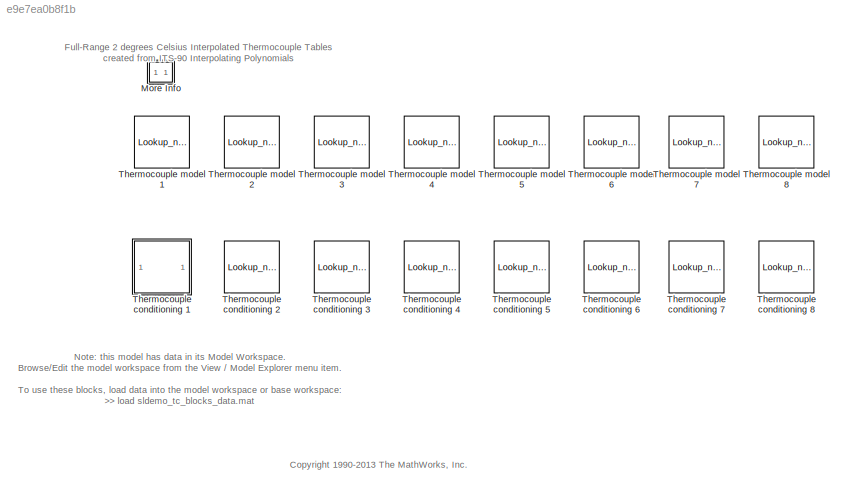
MODEL slx_e9e7ea0b8f1b
KIND model
CONFIG AbsTol = auto
CONFIG EnableMultiTasking = on
CONFIG FixedStep = 1
CONFIG MaxStep = auto
CONFIG MinStep = auto
CONFIG RelTol = 1e-3
CONFIG SampleTimeConstraint = Unconstrained
CONFIG SolverName = FixedStepDiscrete
CONFIG StartTime = 0.0
CONFIG StopTime = 1
WORKSPACE source: external: MAT-File  (data not in archive)
BLOCK [SubSystem] More Info
  OpenFcn = showExample('simulink_general/sldemo_tc_scriptExample')
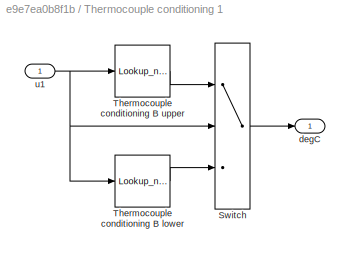
BLOCK [SubSystem] Thermocouple conditioning 1
  AttributesFormatString = TypeB_Volts to\nTypeB_degC
BLOCK [Switch] Thermocouple conditioning 1/Switch
  InputSameDT = off
  SaturateOnIntegerOverflow = off
  Threshold = TypeB_Volts(12)
BLOCK [Lookup_n-D] Thermocouple conditioning 1/Thermocouple conditioning B lower
  AttributesFormatString = %<bp1> to\n%<tableData>
  BeginIndexSearchUsingPreviousIndexResult = on
  BreakpointsForDimension1 = TypeB_Volts(12:-1:1)
  DiagnosticForOutOfRangeInput = Warning
  InputPortMap = u0
  NumberOfTableDimensions = 1
  Table = TypeB_degC(12:-1:1)
BLOCK [Lookup_n-D] Thermocouple conditioning 1/Thermocouple conditioning B upper
  AttributesFormatString = %<bp1> to\n%<tableData>
  BeginIndexSearchUsingPreviousIndexResult = on
  BreakpointsForDimension1 = TypeB_Volts(12:end)
  DiagnosticForOutOfRangeInput = Warning
  InputPortMap = u0
  NameLocation = top
  NumberOfTableDimensions = 1
  Table = TypeB_degC(12:end)
BLOCK [Outport] Thermocouple conditioning 1/degC
  VectorParamsAs1DForOutWhenUnconnected = off
BLOCK [Inport] Thermocouple conditioning 1/u1
BLOCK [Lookup_n-D] Thermocouple conditioning 2
  AttributesFormatString = %<bp1> to\n%<tableData>
  BeginIndexSearchUsingPreviousIndexResult = on
  BreakpointsForDimension1 = TypeE_Volts
  DiagnosticForOutOfRangeInput = Warning
  InputPortMap = u0
  NumberOfTableDimensions = 1
  Table = TypeE_degC
BLOCK [Lookup_n-D] Thermocouple conditioning 3
  AttributesFormatString = %<bp1> to\n%<tableData>
  BeginIndexSearchUsingPreviousIndexResult = on
  BreakpointsForDimension1 = TypeJ_Volts
  DiagnosticForOutOfRangeInput = Warning
  InputPortMap = u0
  NumberOfTableDimensions = 1
  Table = TypeJ_degC
BLOCK [Lookup_n-D] Thermocouple conditioning 4
  AttributesFormatString = %<bp1> to\n%<tableData>
  BeginIndexSearchUsingPreviousIndexResult = on
  BreakpointsForDimension1 = TypeK_Volts
  DiagnosticForOutOfRangeInput = Warning
  InputPortMap = u0
  NumberOfTableDimensions = 1
  Table = TypeK_degC
BLOCK [Lookup_n-D] Thermocouple conditioning 5
  AttributesFormatString = %<bp1> to\n%<tableData>
  BeginIndexSearchUsingPreviousIndexResult = on
  BreakpointsForDimension1 = TypeN_Volts
  DiagnosticForOutOfRangeInput = Warning
  InputPortMap = u0
  NumberOfTableDimensions = 1
  Table = TypeN_degC
BLOCK [Lookup_n-D] Thermocouple conditioning 6
  AttributesFormatString = %<bp1> to\n%<tableData>
  BeginIndexSearchUsingPreviousIndexResult = on
  BreakpointsForDimension1 = TypeR_Volts
  DiagnosticForOutOfRangeInput = Warning
  InputPortMap = u0
  NumberOfTableDimensions = 1
  Table = TypeR_degC
BLOCK [Lookup_n-D] Thermocouple conditioning 7
  AttributesFormatString = %<bp1> to\n%<tableData>
  BeginIndexSearchUsingPreviousIndexResult = on
  BreakpointsForDimension1 = TypeS_Volts
  DiagnosticForOutOfRangeInput = Warning
  InputPortMap = u0
  NumberOfTableDimensions = 1
  Table = TypeS_degC
BLOCK [Lookup_n-D] Thermocouple conditioning 8
  AttributesFormatString = %<bp1> to\n%<tableData>
  BeginIndexSearchUsingPreviousIndexResult = on
  BreakpointsForDimension1 = TypeT_Volts
  DiagnosticForOutOfRangeInput = Warning
  InputPortMap = u0
  NumberOfTableDimensions = 1
  Table = TypeT_degC
BLOCK [Lookup_n-D] Thermocouple model 1
  AttributesFormatString = %<bp1> to\n%<tableData>
  BeginIndexSearchUsingPreviousIndexResult = on
  BreakpointsForDimension1 = TypeB_degC
  DiagnosticForOutOfRangeInput = Warning
  InputPortMap = u0
  NumberOfTableDimensions = 1
  Table = TypeB_Volts
BLOCK [Lookup_n-D] Thermocouple model 2
  AttributesFormatString = %<bp1> to\n%<tableData>
  BeginIndexSearchUsingPreviousIndexResult = on
  BreakpointsForDimension1 = TypeE_degC
  DiagnosticForOutOfRangeInput = Warning
  InputPortMap = u0
  NumberOfTableDimensions = 1
  Table = TypeE_Volts
BLOCK [Lookup_n-D] Thermocouple model 3
  AttributesFormatString = %<bp1> to\n%<tableData>
  BeginIndexSearchUsingPreviousIndexResult = on
  BreakpointsForDimension1 = TypeJ_degC
  DiagnosticForOutOfRangeInput = Warning
  InputPortMap = u0
  NumberOfTableDimensions = 1
  Table = TypeJ_Volts
BLOCK [Lookup_n-D] Thermocouple model 4
  AttributesFormatString = %<bp1> to\n%<tableData>
  BeginIndexSearchUsingPreviousIndexResult = on
  BreakpointsForDimension1 = TypeK_degC
  DiagnosticForOutOfRangeInput = Warning
  InputPortMap = u0
  NumberOfTableDimensions = 1
  Table = TypeK_Volts
BLOCK [Lookup_n-D] Thermocouple model 5
  AttributesFormatString = %<bp1> to\n%<tableData>
  BeginIndexSearchUsingPreviousIndexResult = on
  BreakpointsForDimension1 = TypeN_degC
  DiagnosticForOutOfRangeInput = Warning
  InputPortMap = u0
  NumberOfTableDimensions = 1
  Table = TypeN_Volts
BLOCK [Lookup_n-D] Thermocouple model 6
  AttributesFormatString = %<bp1> to\n%<tableData>
  BeginIndexSearchUsingPreviousIndexResult = on
  BreakpointsForDimension1 = TypeR_degC
  DiagnosticForOutOfRangeInput = Warning
  InputPortMap = u0
  NumberOfTableDimensions = 1
  Table = TypeR_Volts
BLOCK [Lookup_n-D] Thermocouple model 7
  AttributesFormatString = %<bp1> to\n%<tableData>
  BeginIndexSearchUsingPreviousIndexResult = on
  BreakpointsForDimension1 = TypeS_degC
  DiagnosticForOutOfRangeInput = Warning
  InputPortMap = u0
  NumberOfTableDimensions = 1
  Table = TypeS_Volts
BLOCK [Lookup_n-D] Thermocouple model 8
  AttributesFormatString = %<bp1> to\n%<tableData>
  BeginIndexSearchUsingPreviousIndexResult = on
  BreakpointsForDimension1 = TypeT_degC
  DiagnosticForOutOfRangeInput = Warning
  InputPortMap = u0
  NumberOfTableDimensions = 1
  Table = TypeT_Volts
ANNOTATION (root): <copyright redacted>
ANNOTATION (root): Full-Range 2 degrees Celsius Interpolated Thermocouple Tables created from ITS-90 Interpolating Polynomials
ANNOTATION (root): Note: this model has data in its Model Workspace. Browse/Edit the model workspace from the View / Model Explorer menu item. To use these blocks, load data into the model workspace or base workspace: >> load sldemo_tc_blocks_data.mat
LINE Thermocouple conditioning 1/Switch:1 -> Thermocouple conditioning 1/degC:1
LINE Thermocouple conditioning 1/Thermocouple conditioning B lower:1 -> Thermocouple conditioning 1/Switch:3
LINE Thermocouple conditioning 1/Thermocouple conditioning B upper:1 -> Thermocouple conditioning 1/Switch:1
NET Thermocouple conditioning 1/u1:1 -> Thermocouple conditioning 1/Switch:2, Thermocouple conditioning 1/Thermocouple conditioning B lower:1, Thermocouple conditioning 1/Thermocouple conditioning B upper:1
note: NET lines group one-source signal fan-out (src -> all destinations, sorted); 1:1 wires keep LINE
